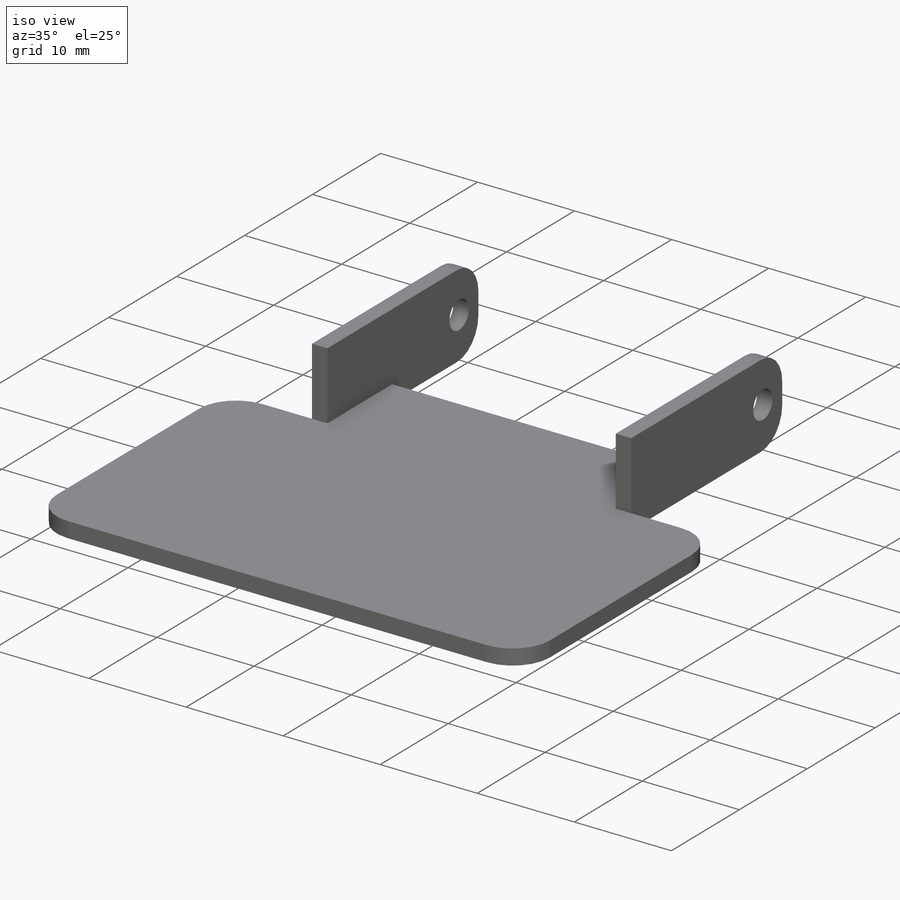
[diagram: iso view]
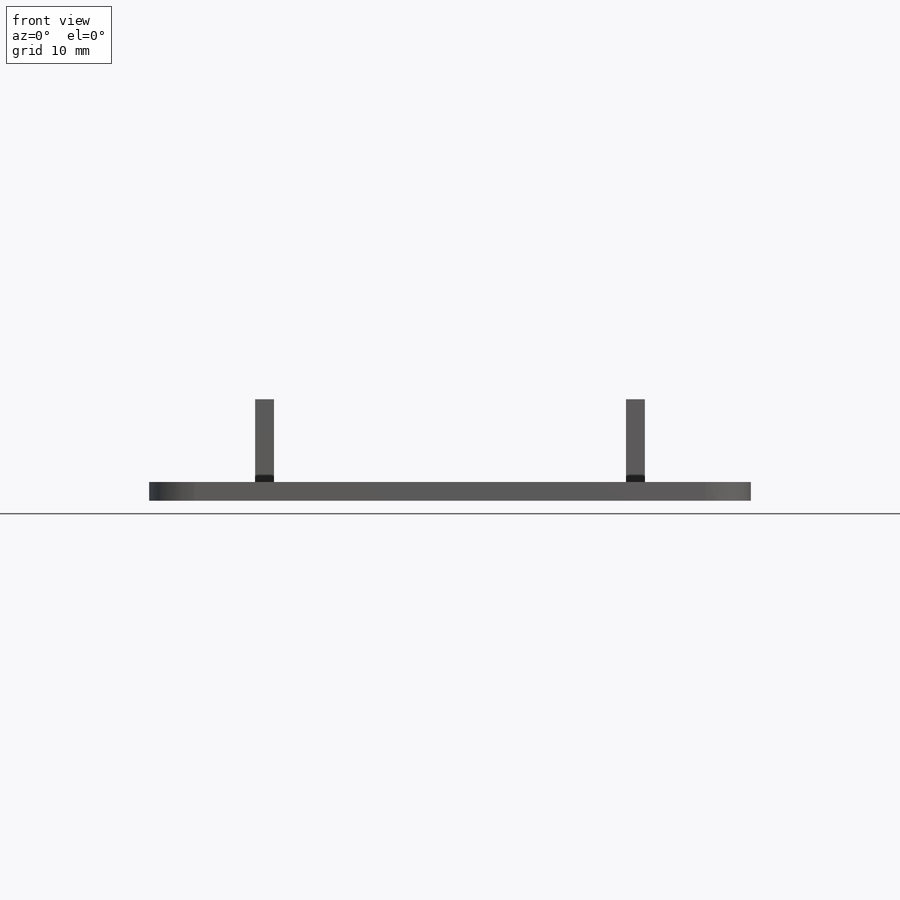
[diagram: front view]
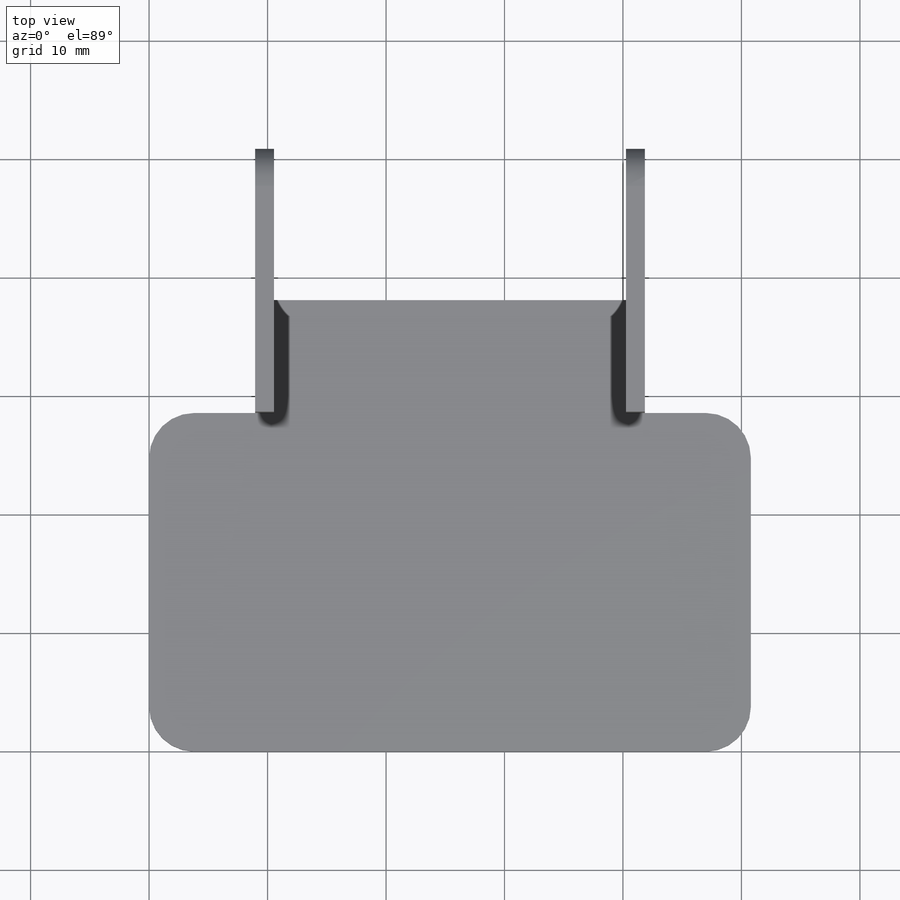
[diagram: top view]
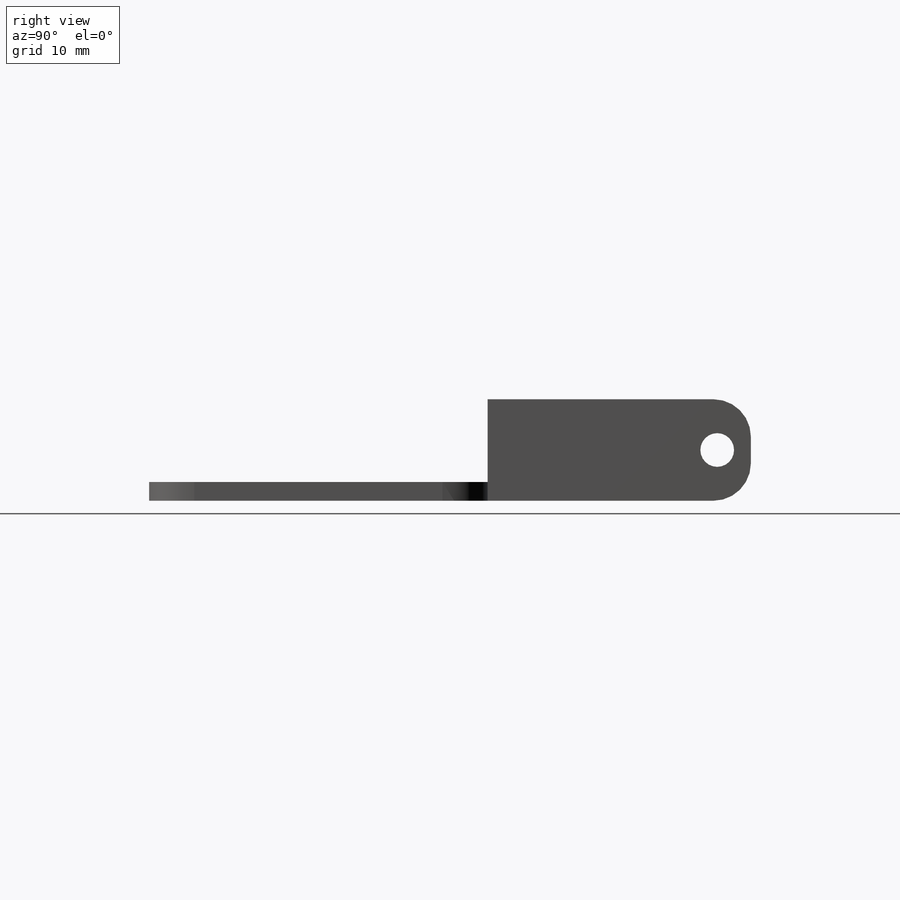
[diagram: right view]
SOLIDWORKS PART (.sldprt)
format: sldprt  version: not decoded by parser v0  size: 190,464 bytes
history: native  units: mm
features: sketch x4, extrude x2, fillet x2, material x1, hole x1 (+11 scaffold rows collapsed)
feature tree (21):
  scaffold x11  (default folders/planes/origin — collapsed)
  material  "Material <not specified>"
  sketch  "Sketch1"  dims[D1=1.5875mm D2=50.8mm D3=28.575mm D4=38.1mm D5=32.893mm D6=50.8mm]
  extrude  "Boss-Extrude1"  Depth=1.5875mm
  sketch  "Sketch2"
  extrude  "Boss-Extrude2"  Depth=6.5786mm
  fillet  "Fillet1"  Radius=3.175mm
  fillet  "Fillet2"  Radius=3.81mm
  hole  "Hole1"  Diameter=2.8448mm Depth=41.8465mm
  sketch  "Sketch4"  dims[D1=2.8448mm]
  sketch  "Sketch3"  dims[Diameter=2.8448mm Depth=41.8465mm]
decode coverage: 8 of 9 modeling features carry decoded parameters
note: suppression state not decoded; provenance and decode notes live in map.json
